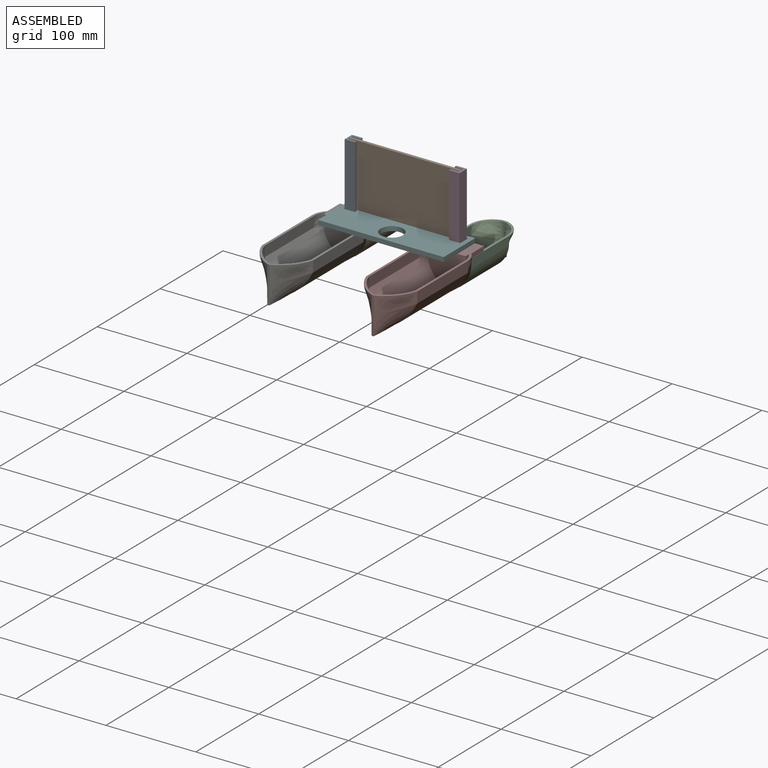
[diagram: assembled view]
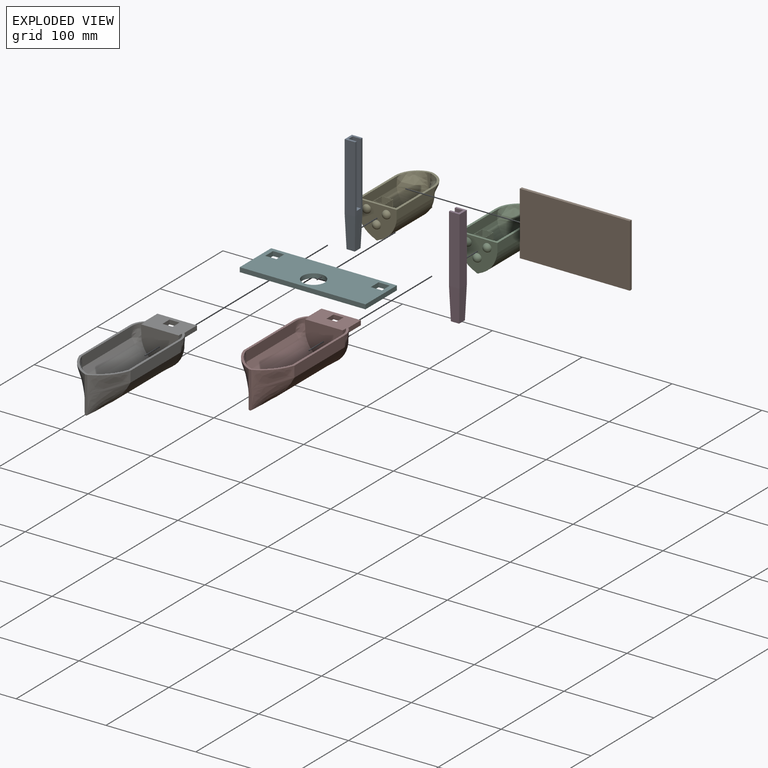
[diagram: exploded view]
GUIDED TOUR — MATED ASSEMBLY (Onshape document 58406fd04f1afb109c46c443, AutoMate assembly 58406fd04f1afb109c46c443_170018a6fda4be6148082988_6fb4af5002165b8be4d22255_default)

This assembly has 8 components, labeled P0..P7 below (a component is one placed occurrence of a part; the same part can appear more than once), held together by 7 mates. A mate is a constraint between two components; its type names the relative motion it leaves free:
  FASTENED — locks the two components together rigidly (no relative motion).
Axis/direction vectors are unit vectors and 'through' points are millimeter coordinates, both in the assembly's world frame.

MATES
  1. FASTENED "Fastened 6": P3 <-> P2, direction (0.000, 0.000, -1.000) through (53.33, 26.30, -78.18) mm
  2. FASTENED "Fastened 3": P2 <-> P7, direction (0.000, -1.000, 0.000) through (53.33, 16.05, -63.20) mm
  3. FASTENED "Fastened 4": P5 <-> P7, direction (0.000, -1.000, 0.000) through (47.74, 26.30, -42.39) mm
  4. FASTENED "Fastened 2": P5 <-> P6, direction (0.000, 0.000, -1.000) through (-57.26, 26.30, -42.39) mm
  5. FASTENED "Fastened 5": P0 <-> P4, direction (0.000, 0.000, -1.000) through (-62.84, 26.30, -78.18) mm
  6. FASTENED "Fastened 1": P4 <-> P6, direction (0.000, -1.000, 0.000) through (-62.84, 16.05, -63.20) mm
  7. FASTENED "Fastened 7": P1 <-> P0, direction (-1.000, 0.000, 0.000) through (-66.19, 26.30, -2.39) mm

ASSEMBLY ORDER
  1. P0 — the base component [order heuristic]
  2. P4 — core [order heuristic]
  3. P5 [order verified]
  4. P7 — core [order heuristic]
  5. P2 — core [order heuristic]
  6. P3 — core [order heuristic]
  7. P1 [order verified]
  8. P6 — core [order heuristic]
Order-tag legend:
  [order verified] — this step's position reverses a verified removal order: the component was checked to insert without passing through the ones already placed.
  [order heuristic] — the first 6 components form the assembly's core: parts whose collision-free extraction could not be verified, listed in mate-graph order.

Of the 8 components, 2 carry the full construction recipe — the FeatureScript program that regenerates the part's solid from scratch; the rest are supplied as boundary geometry only.
Each toured component is shown spotlighted twice — in the assembled view, then in the exploded view, where a leader line traces a displaced component back to its assembled socket (saturated green if recipe-attached, orange if geometry-only; every other component desaturated gray) — followed by its recipe or geometry summary and the mates that hold it.
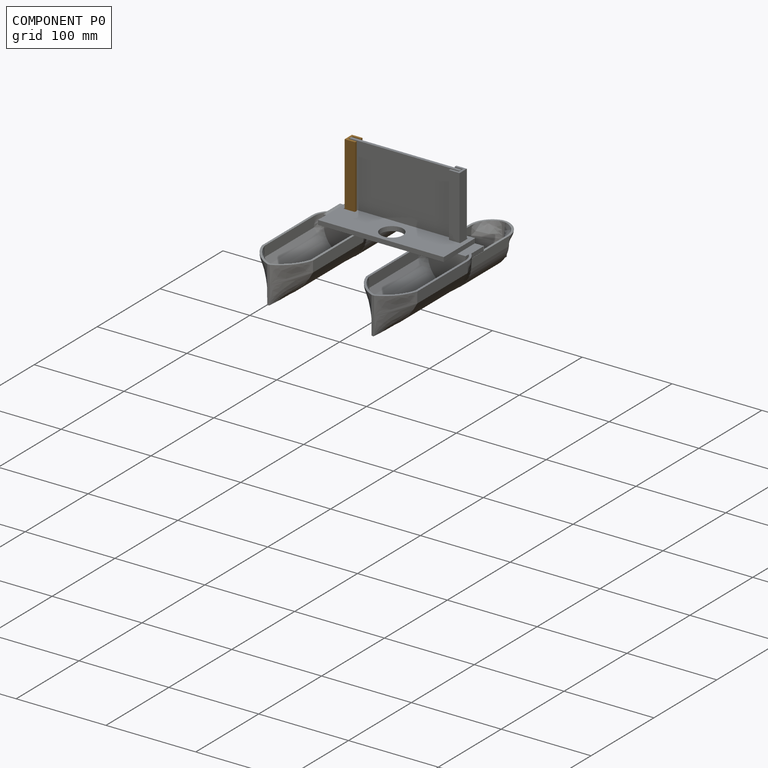
[diagram: component P0 — assembled]
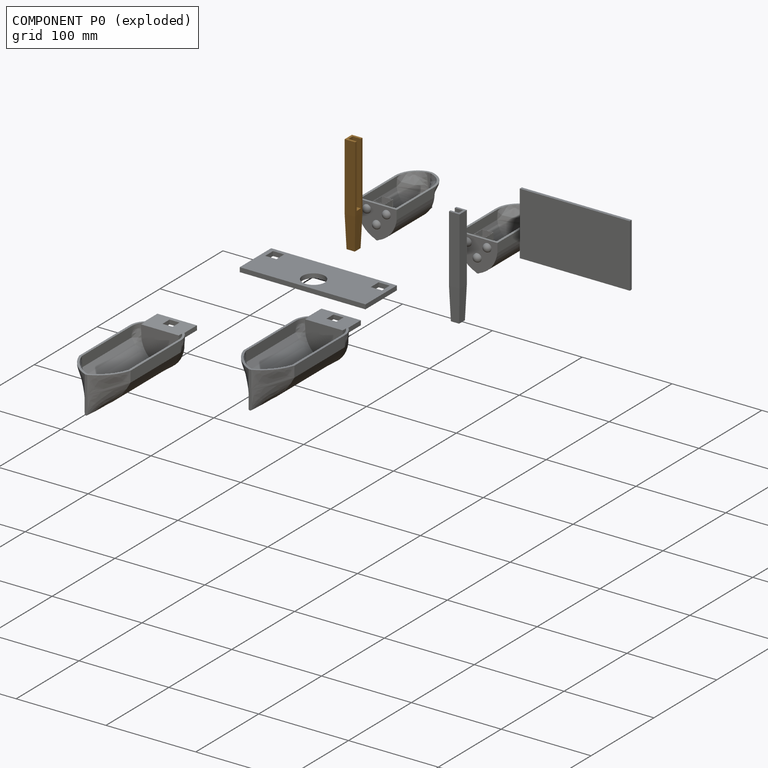
[diagram: component P0 — exploded]
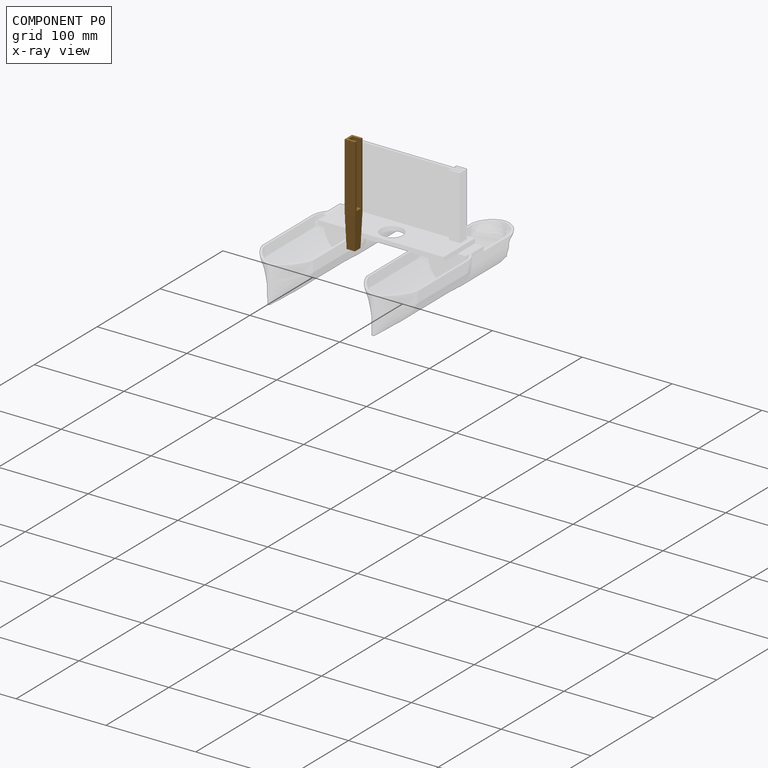
[diagram: component P0 — x-ray view]
COMPONENT P0 — geometry summary (no construction recipe available for this part):
  bounding box: 110.8 x 11.7 x 11.7 mm
  B-rep topology: 1 solid, 14 faces, 64 edges
  volume: 9879 mm^3 (65% of its bounding box)
  symmetry: mirror-symmetric across its y mid-plane
Held by: FASTENED mate "Fastened 5" to P4; FASTENED mate "Fastened 7" to P1.
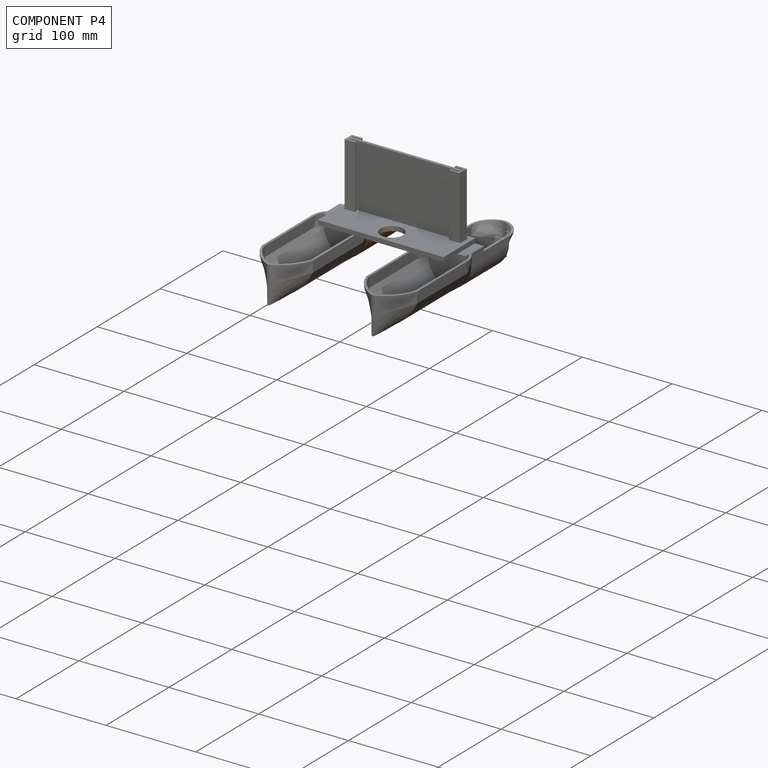
[diagram: component P4 — assembled]
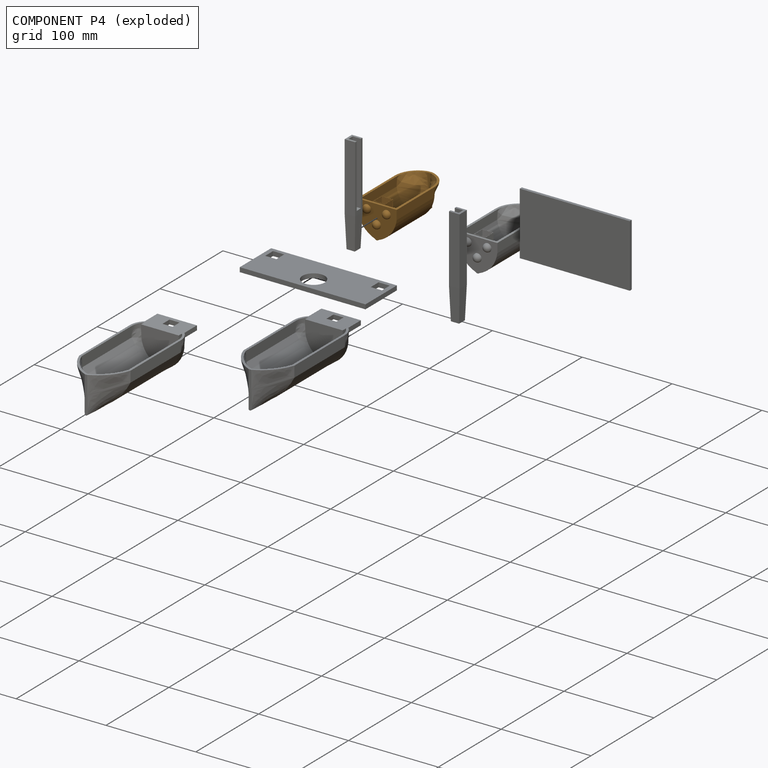
[diagram: component P4 — exploded]
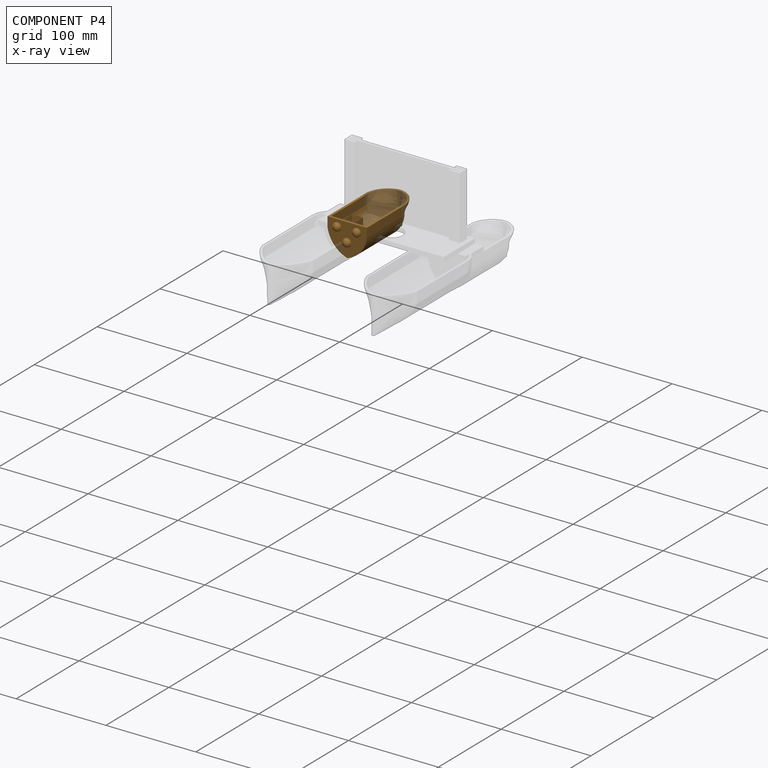
[diagram: component P4 — x-ray view]
COMPONENT P4 — geometry summary (no construction recipe available for this part):
  bounding box: 94.5 x 49.4 x 41.5 mm
  B-rep topology: 1 solid, 41 faces, 212 edges
  volume: 23993 mm^3 (12% of its bounding box)
  symmetry: mirror-symmetric across its x mid-plane
Held by: FASTENED mate "Fastened 5" to P0; FASTENED mate "Fastened 1" to P6.
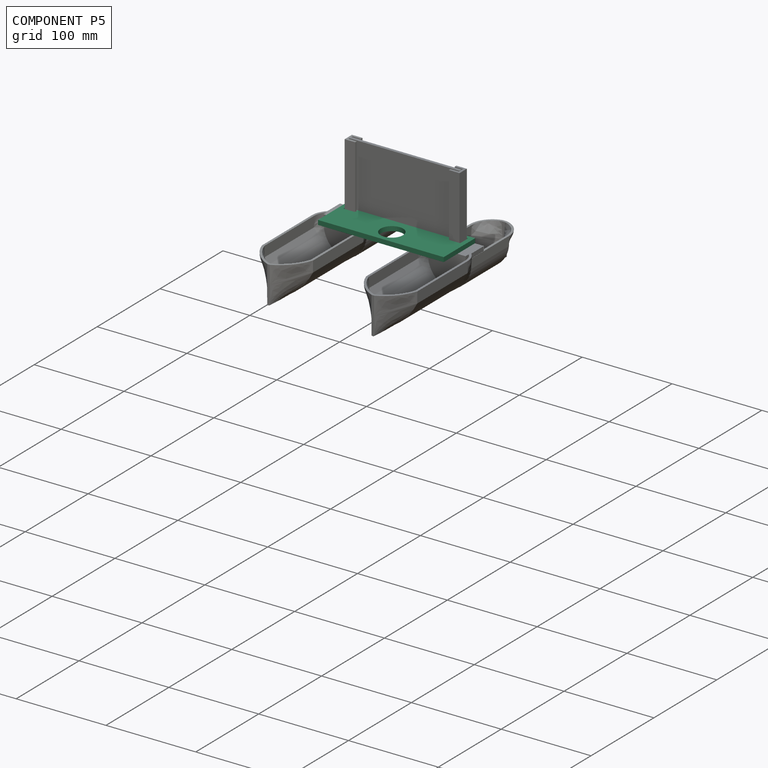
[diagram: component P5 — assembled]
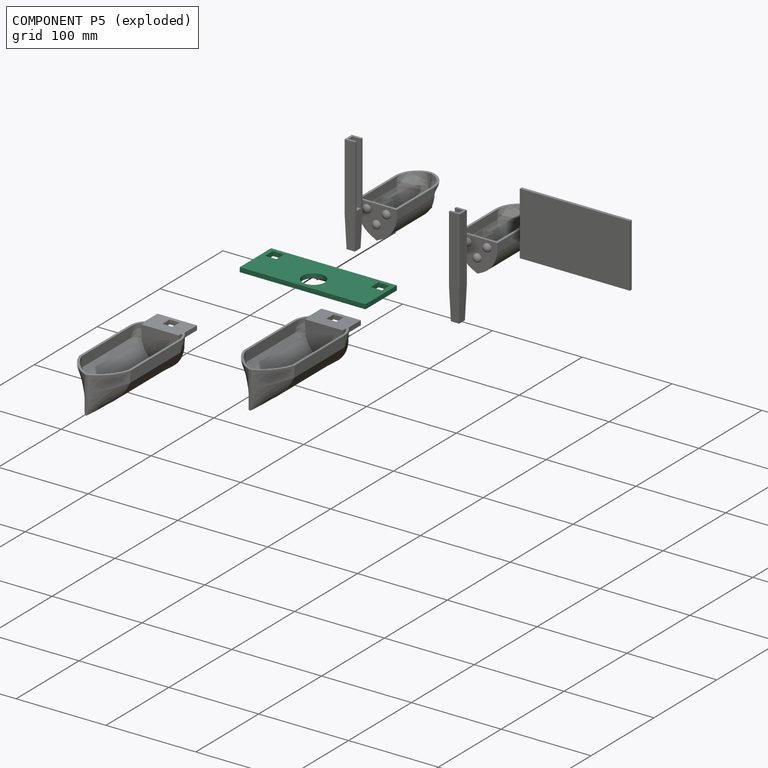
[diagram: component P5 — exploded]
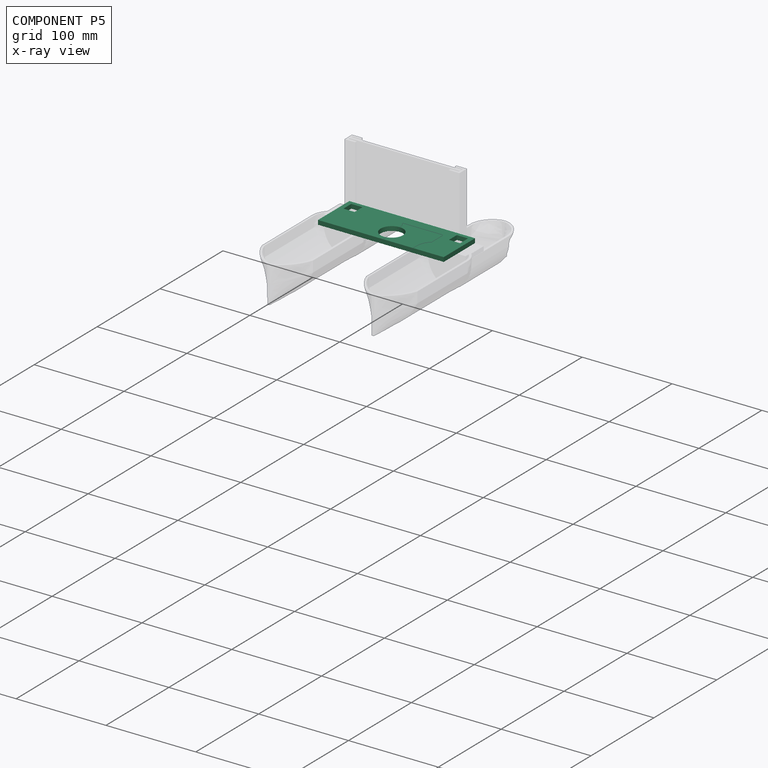
[diagram: component P5 — x-ray view]
COMPONENT P5 — recipe-attached (CADFS 00359932, mesh-verified: the recipe's output STEP matches this component's geometry to below the mesh-comparison resolution (tessellation chordal tolerance ~0.223 mm)).
Held by: FASTENED mate "Fastened 4" to P7; FASTENED mate "Fastened 2" to P6.
Construction recipe (FeatureScript — the CAD program that rebuilds this solid; sketch coordinates are in the units given by the * unit suffixes, e.g. mm):

FeatureScript 1511;
import(path : "onshape/std/geometry.fs", version : "1511.0");
import(path : "onshape/std/common.fs", version : "1511.0");
const mm = millimeter;
const VERTEX = EntityType.VERTEX;
const EDGE = EntityType.EDGE;
const FACE = EntityType.FACE;
const BODY = EntityType.BODY;
function v(x, y){return vector(x, y);}
function OD(order){return orderDisambiguation(order);}
function OSD(set){return originalSetDisambiguation(set);}
function TD(topology){return topologyDisambiguation(topology);}
function TDD(query){return trueDependencyDisambiguation(query);}
function sQuery(a, b, c) {return sketchEntityQuery(a, b, c);}

annotation { "Feature Type Name" : "Feature", "Feature Type Description" : "" }
export const myFeature = defineFeature(function(context is Context, id is Id, definition is map)
    precondition{}
    {
        {
            var Q0;
            Q0=qCreatedBy(makeId("Top.planeOp"),FACE);
            var sketch = newSketch(context, id + "F0", { "sketchPlane" : qUnion([Q0])});
            skLineSegment(sketch, "E0.bottom", {"start": v(-67.77, 20.9) * mm, "end": v(72.23, 20.9) * mm});
            skLineSegment(sketch, "E0.top", {"start": v(-67.77, -29.1) * mm, "end": v(72.23, -29.1) * mm});
            skLineSegment(sketch, "E0.left", {"start": v(-67.77, 20.9) * mm, "end": v(-67.77, -29.1) * mm});
            skLineSegment(sketch, "E0.right", {"start": v(72.23, 20.9) * mm, "end": v(72.23, -29.1) * mm});
            skSolve(sketch);
        }
        {
            var Q0;
            Q0=makeQuery(id+"F0.imprint","IMPRINT",FACE,{"disambiguationData":[TD([[makeQuery(id+"F0.imprint","IMPRINT",EDGE,{"derivedFrom":sQuery(id+"F0.wireOp",EDGE,"E0.bottom")}),-1.0]])]});
            extrude(context, id + "F1", {"entities" : qUnion([Q0]), "depth" : 5 * mm});
        }
        {
            var Q0;
            Q0=makeQuery(id+"F1.opExtrude","CAP_FACE",FACE,{"disambiguationData":[OSD([sQuery(id+"F0.wireOp",EDGE,"E0.bottom"),sQuery(id+"F0.wireOp",EDGE,"E0.top"),sQuery(id+"F0.wireOp",EDGE,"E0.left"),sQuery(id+"F0.wireOp",EDGE,"E0.right")])],"isStart":false});
            var sketch = newSketch(context, id + "F2", { "sketchPlane" : qUnion([Q0])});
            skLineSegment(sketch, "E1.bottom", {"start": v(-62.77, 16.75) * mm, "end": v(-50.27, 16.75) * mm});
            skLineSegment(sketch, "E1.top", {"start": v(-62.77, 4.25) * mm, "end": v(-50.27, 4.25) * mm});
            skLineSegment(sketch, "E1.left", {"start": v(-62.77, 16.75) * mm, "end": v(-62.77, 4.25) * mm});
            skLineSegment(sketch, "E1.right", {"start": v(-50.27, 16.75) * mm, "end": v(-50.27, 4.25) * mm});
            skLineSegment(sketch, "E2", {"start": v(2.23, -29.1) * mm, "end": v(2.23, 20.9) * mm, "construction": true});
            skLineSegment(sketch, "E3.MirrorCS", {"start": v(54.73, 16.75) * mm, "end": v(54.73, 4.25) * mm});
            skLineSegment(sketch, "E4.MirrorCS", {"start": v(67.23, 16.75) * mm, "end": v(67.23, 4.25) * mm});
            skLineSegment(sketch, "E5.MirrorCS", {"start": v(67.23, 4.25) * mm, "end": v(54.73, 4.25) * mm});
            skLineSegment(sketch, "E6.MirrorCS", {"start": v(67.23, 16.75) * mm, "end": v(54.73, 16.75) * mm});
            skSolve(sketch);
        }
        {
            var Q0;
            Q0=makeQuery(id+"F2.imprint","IMPRINT",FACE,{"disambiguationData":[TD([[makeQuery(id+"F2.imprint","IMPRINT",EDGE,{"derivedFrom":sQuery(id+"F2.wireOp",EDGE,"E1.bottom")}),-1.0]])]});
            var Q1;
            Q1=makeQuery(id+"F2.imprint","IMPRINT",FACE,{"disambiguationData":[TD([[makeQuery(id+"F2.imprint","IMPRINT",EDGE,{"derivedFrom":sQuery(id+"F2.wireOp",EDGE,"E3.MirrorCS")}),1.0]])]});
            extrude(context, id + "F3", {"entities" : qUnion([Q0, Q1]), "operationType" : NewBodyOperationType.REMOVE, "oppositeDirection" : true, "depth" : 25 * mm});
        }
        {
            var Q0;
            Q0=makeQuery(id+"F1.opExtrude","CAP_FACE",FACE,{"disambiguationData":[OSD([sQuery(id+"F0.wireOp",EDGE,"E0.bottom"),sQuery(id+"F0.wireOp",EDGE,"E0.top"),sQuery(id+"F0.wireOp",EDGE,"E0.left"),sQuery(id+"F0.wireOp",EDGE,"E0.right")])],"isStart":false});
            var sketch = newSketch(context, id + "F4", { "sketchPlane" : qUnion([Q0])});
            skLineSegment(sketch, "E7", {"start": v(2.23, 20.9) * mm, "end": v(2.23, -29.1) * mm, "construction": true});
            skCircle(sketch, "E8", {"center": v(2.23, -11.6) * mm, "radius": 12.5 * mm});
            skSolve(sketch);
        }
        {
            var Q0;
            Q0=makeQuery(id+"F4.imprint","IMPRINT",FACE,{"disambiguationData":[TD([[makeQuery(id+"F4.imprint","IMPRINT",EDGE,{"derivedFrom":sQuery(id+"F4.wireOp",EDGE,"E8")}),1.0]])]});
            extrude(context, id + "F5", {"entities" : qUnion([Q0]), "operationType" : NewBodyOperationType.REMOVE, "oppositeDirection" : true, "depth" : 25 * mm});
        }
    });
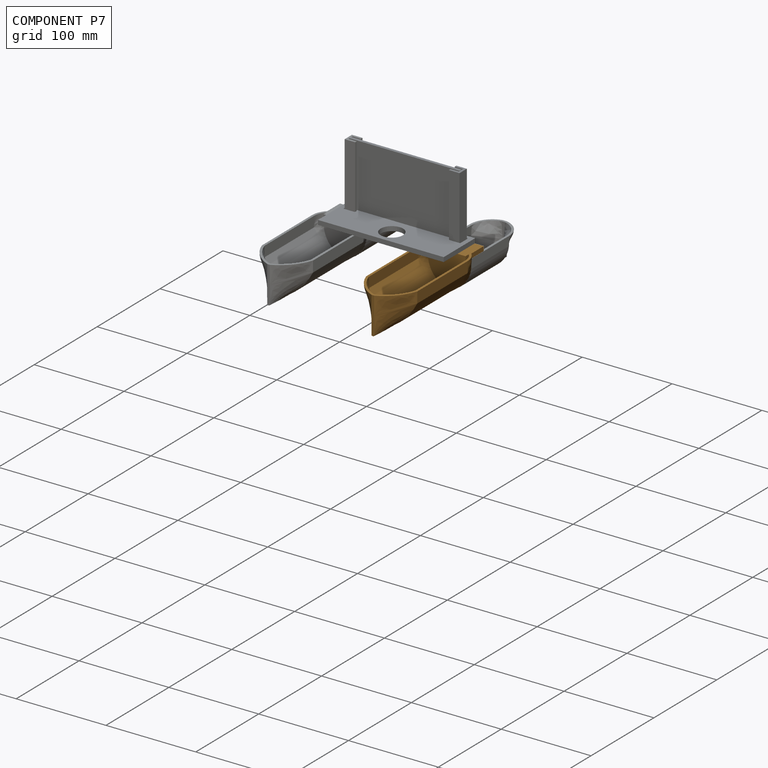
[diagram: component P7 — assembled]
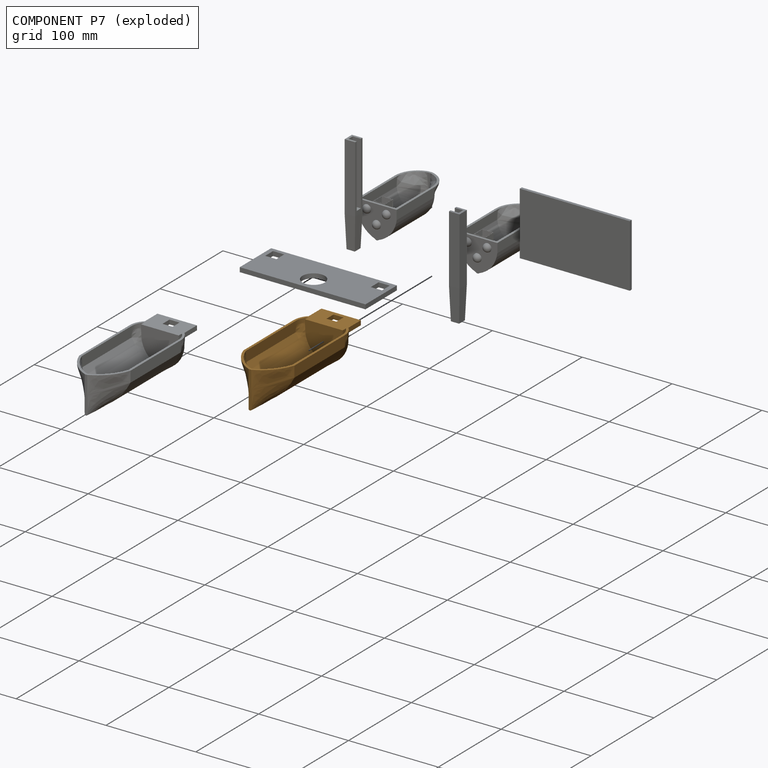
[diagram: component P7 — exploded]
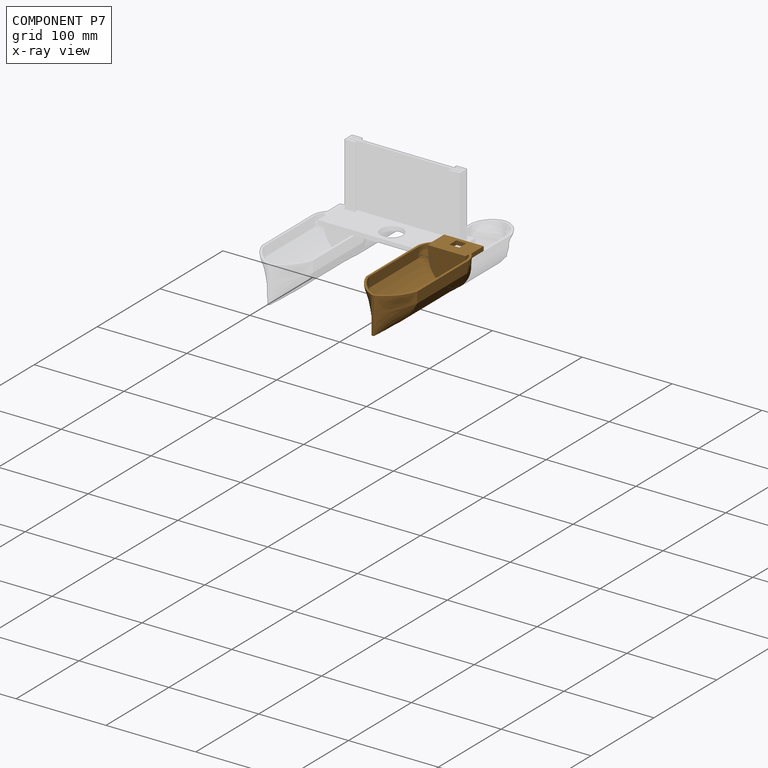
[diagram: component P7 — x-ray view]
COMPONENT P7 — geometry summary (no construction recipe available for this part):
  bounding box: 150.0 x 62.3 x 46.5 mm
  B-rep topology: 1 solid, 58 faces, 312 edges
  volume: 45427 mm^3 (10% of its bounding box)
  symmetry: mirror-symmetric across its x mid-plane
Held by: FASTENED mate "Fastened 3" to P2; FASTENED mate "Fastened 4" to P5.
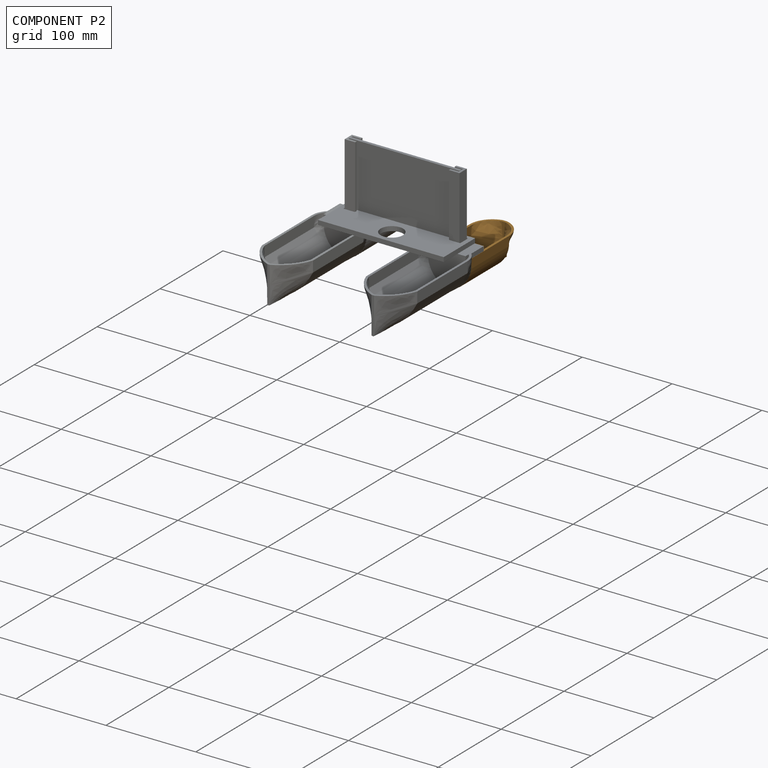
[diagram: component P2 — assembled]
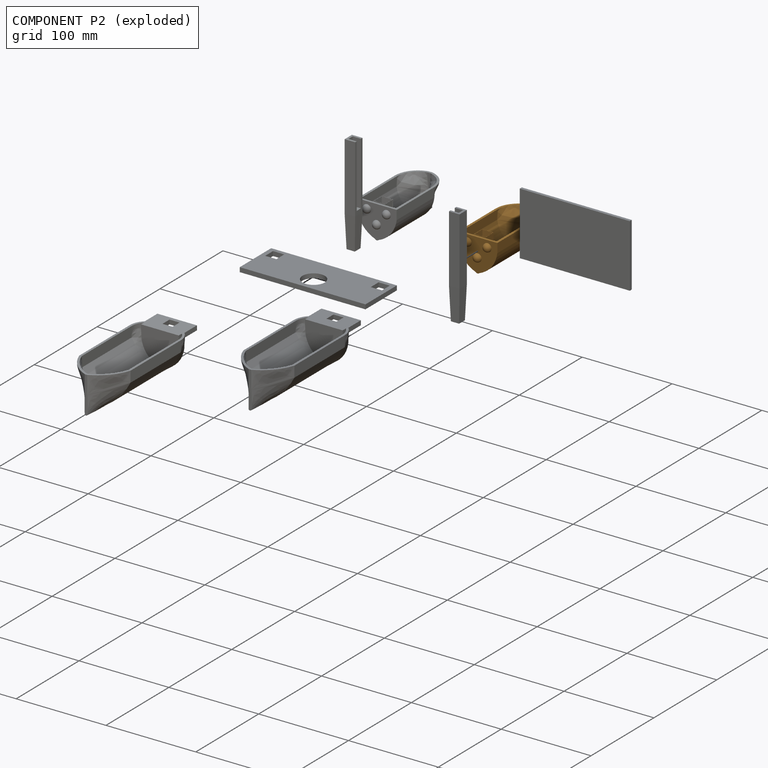
[diagram: component P2 — exploded]
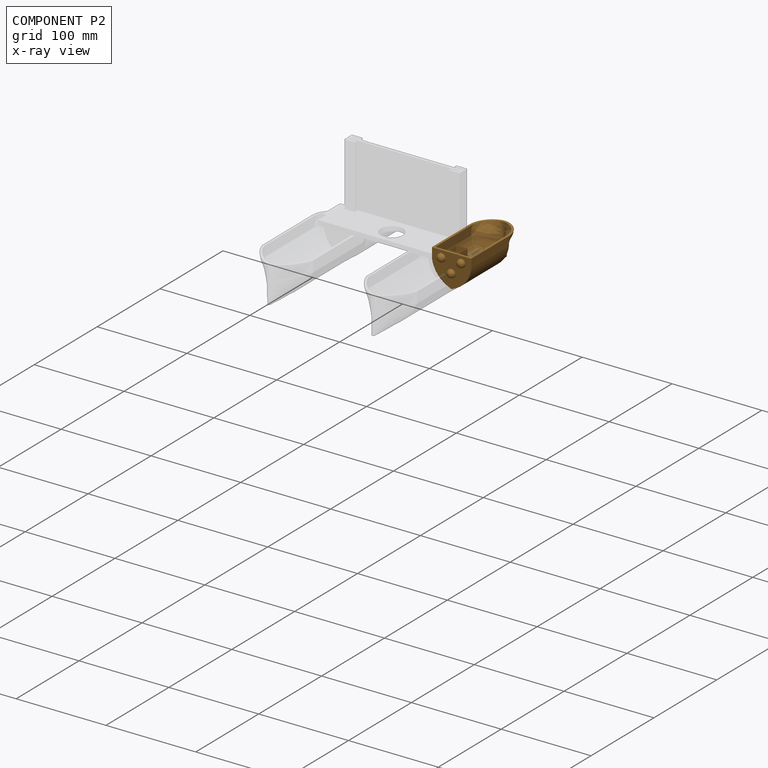
[diagram: component P2 — x-ray view]
COMPONENT P2 — geometry summary (no construction recipe available for this part):
  bounding box: 94.5 x 49.4 x 41.5 mm
  B-rep topology: 1 solid, 41 faces, 212 edges
  volume: 23993 mm^3 (12% of its bounding box)
  symmetry: mirror-symmetric across its x mid-plane
Held by: FASTENED mate "Fastened 6" to P3; FASTENED mate "Fastened 3" to P7.
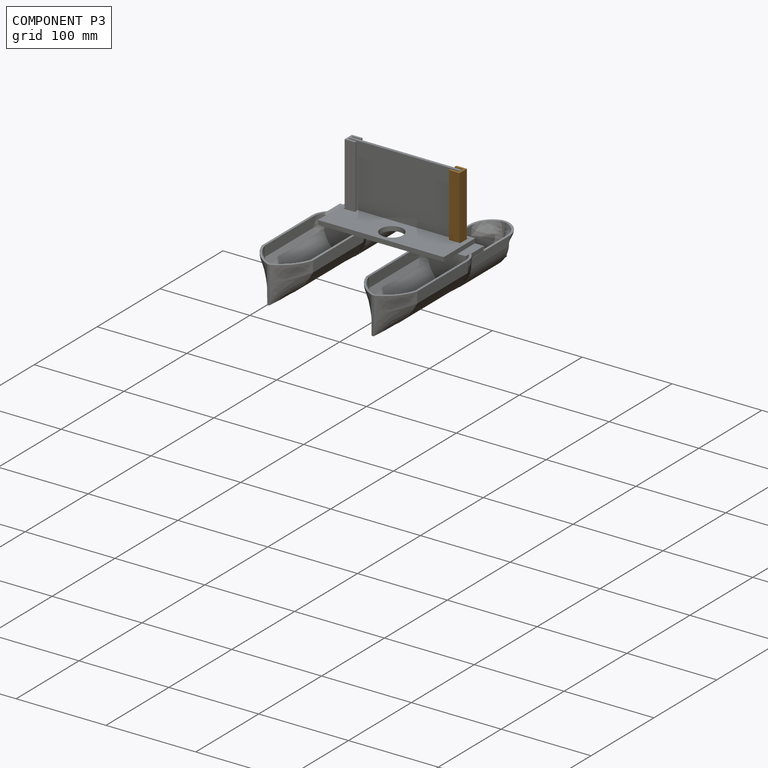
[diagram: component P3 — assembled]
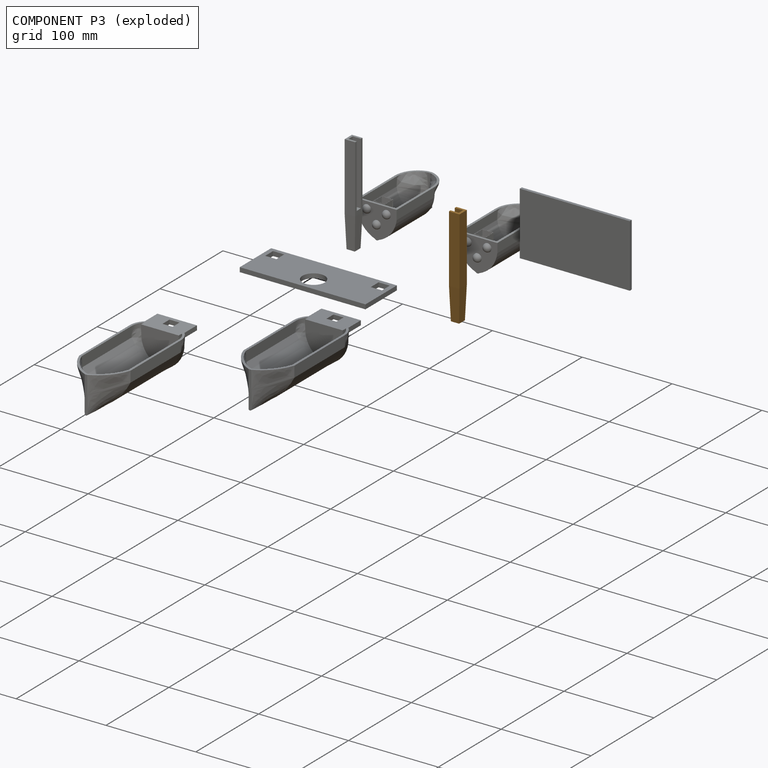
[diagram: component P3 — exploded]
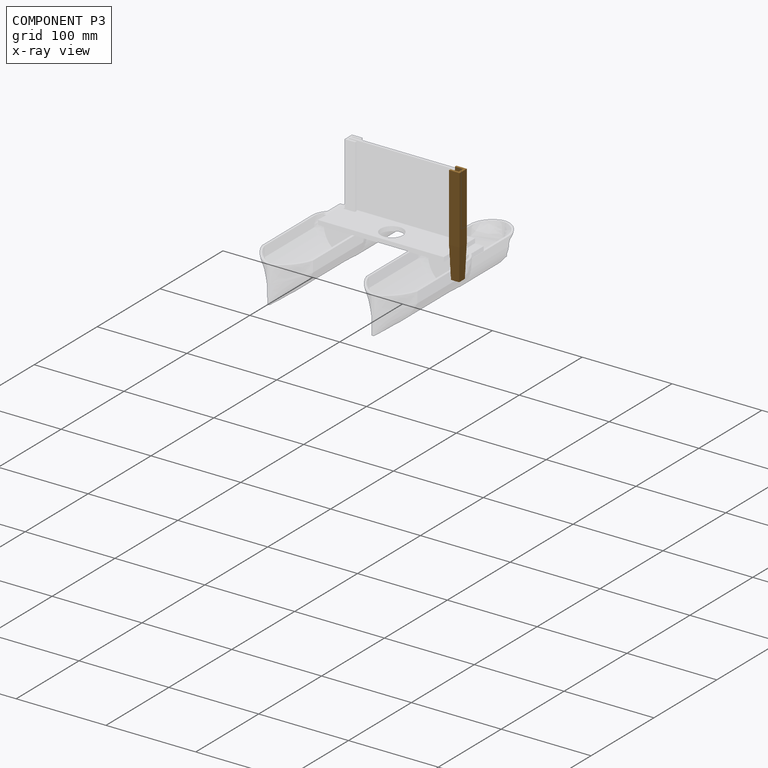
[diagram: component P3 — x-ray view]
COMPONENT P3 — geometry summary (no construction recipe available for this part):
  bounding box: 110.8 x 11.7 x 11.7 mm
  B-rep topology: 1 solid, 14 faces, 64 edges
  volume: 9879 mm^3 (65% of its bounding box)
  symmetry: mirror-symmetric across its y mid-plane
Held by: FASTENED mate "Fastened 6" to P2.
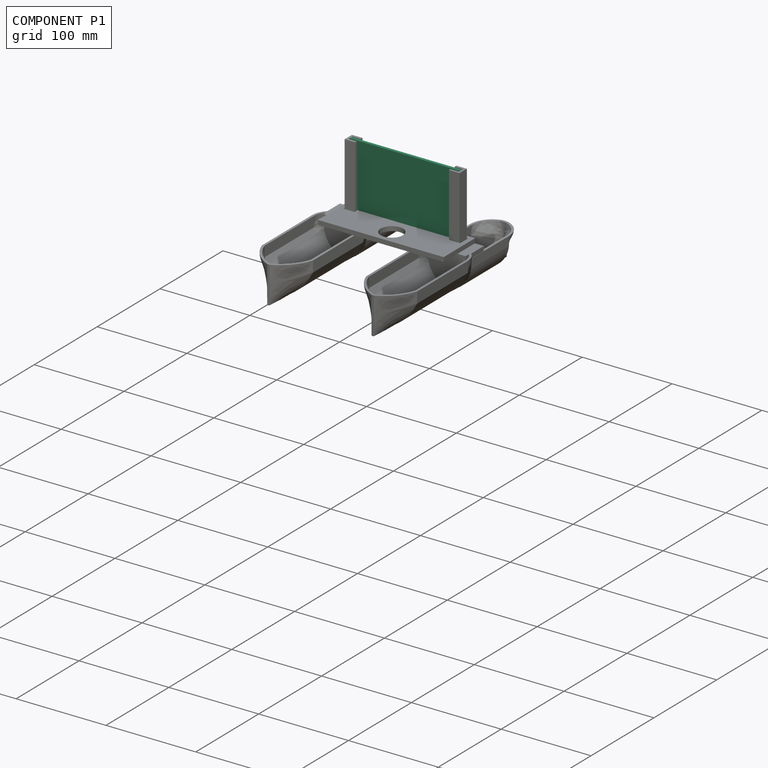
[diagram: component P1 — assembled]
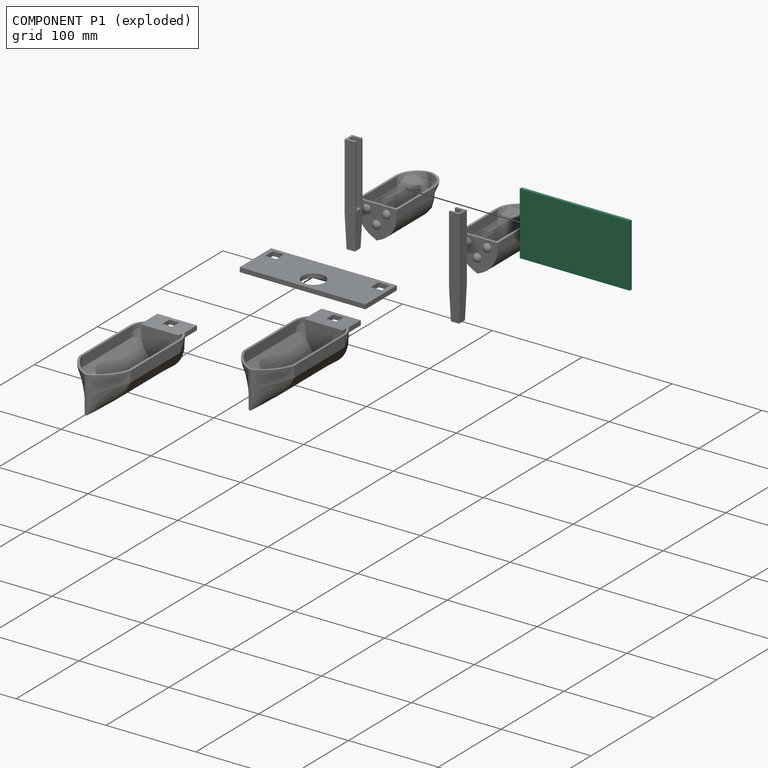
[diagram: component P1 — exploded]
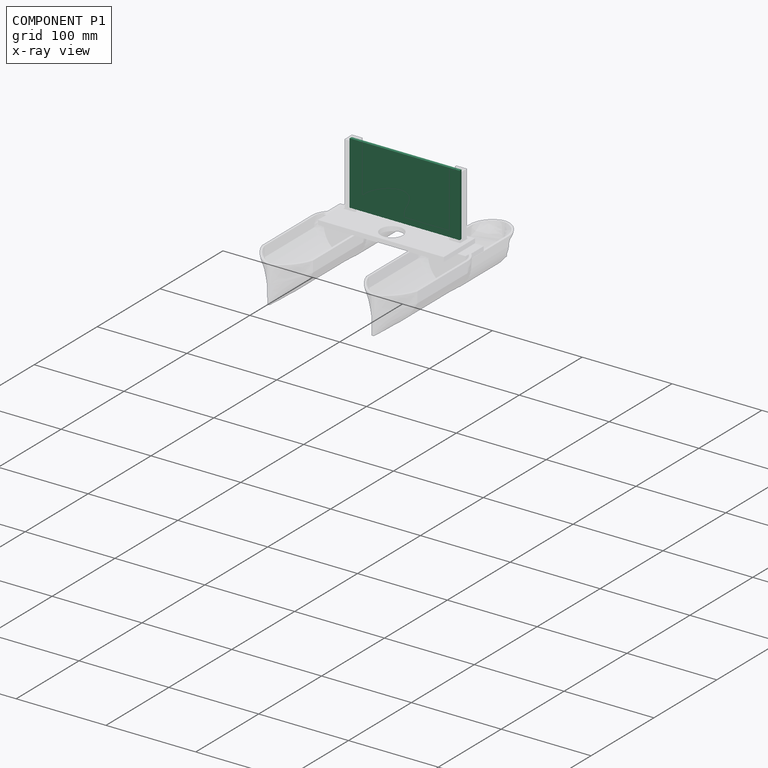
[diagram: component P1 — x-ray view]
COMPONENT P1 — recipe-attached (CADFS 00359933, mesh-verified: the recipe's output STEP matches this component's geometry to below the mesh-comparison resolution (tessellation chordal tolerance ~0.212 mm)).
Held by: FASTENED mate "Fastened 7" to P0.
Construction recipe (FeatureScript — the CAD program that rebuilds this solid; sketch coordinates are in the units given by the * unit suffixes, e.g. mm):

FeatureScript 1511;
import(path : "onshape/std/geometry.fs", version : "1511.0");
import(path : "onshape/std/common.fs", version : "1511.0");
const mm = millimeter;
const VERTEX = EntityType.VERTEX;
const EDGE = EntityType.EDGE;
const FACE = EntityType.FACE;
const BODY = EntityType.BODY;
function v(x, y){return vector(x, y);}
function OD(order){return orderDisambiguation(order);}
function OSD(set){return originalSetDisambiguation(set);}
function TD(topology){return topologyDisambiguation(topology);}
function TDD(query){return trueDependencyDisambiguation(query);}
function sQuery(a, b, c) {return sketchEntityQuery(a, b, c);}

annotation { "Feature Type Name" : "Feature", "Feature Type Description" : "" }
export const myFeature = defineFeature(function(context is Context, id is Id, definition is map)
    precondition{}
    {
        {
            var Q0;
            Q0=qCreatedBy(makeId("Top.planeOp"),FACE);
            var sketch = newSketch(context, id + "F0", { "sketchPlane" : qUnion([Q0])});
            skLineSegment(sketch, "E0.bottom", {"start": v(-14.69, 2.6) * mm, "end": v(107.81, 2.6) * mm});
            skLineSegment(sketch, "E0.top", {"start": v(-14.69, -0.6) * mm, "end": v(107.81, -0.6) * mm});
            skLineSegment(sketch, "E0.left", {"start": v(-14.69, 2.6) * mm, "end": v(-14.69, -0.6) * mm});
            skLineSegment(sketch, "E0.right", {"start": v(107.81, 2.6) * mm, "end": v(107.81, -0.6) * mm});
            skSolve(sketch);
        }
        {
            var Q0;
            Q0=makeQuery(id+"F0.imprint","IMPRINT",FACE,{"disambiguationData":[TD([[makeQuery(id+"F0.imprint","IMPRINT",EDGE,{"derivedFrom":sQuery(id+"F0.wireOp",EDGE,"E0.bottom")}),-1.0]])]});
            extrude(context, id + "F1", {"entities" : qUnion([Q0]), "depth" : 70 * mm});
        }
    });
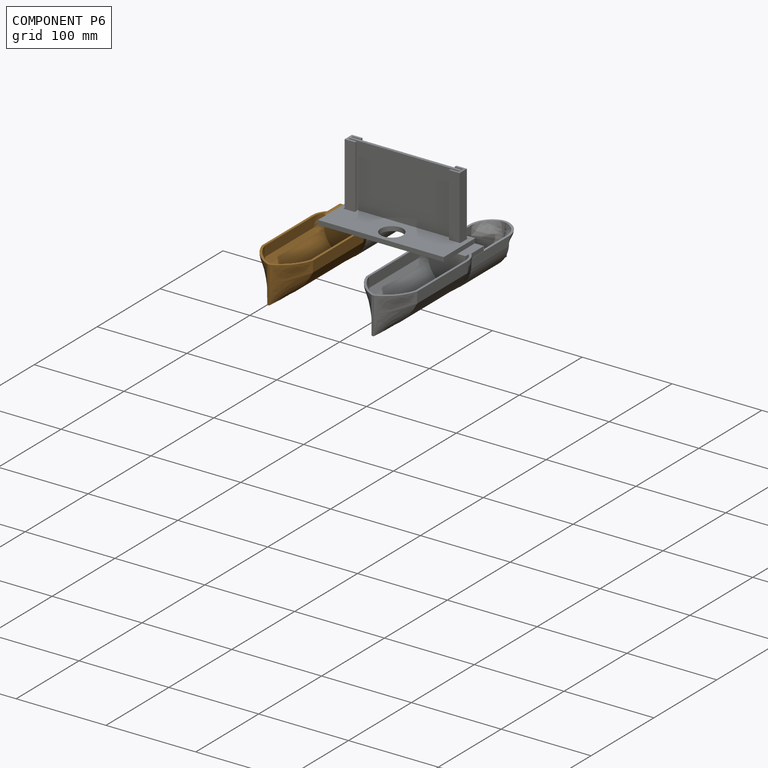
[diagram: component P6 — assembled]
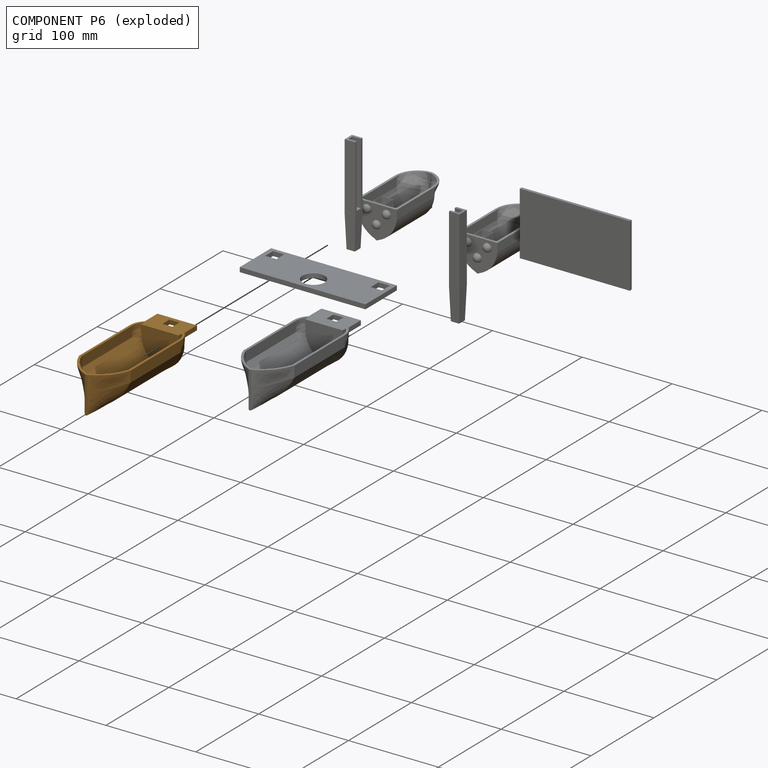
[diagram: component P6 — exploded]
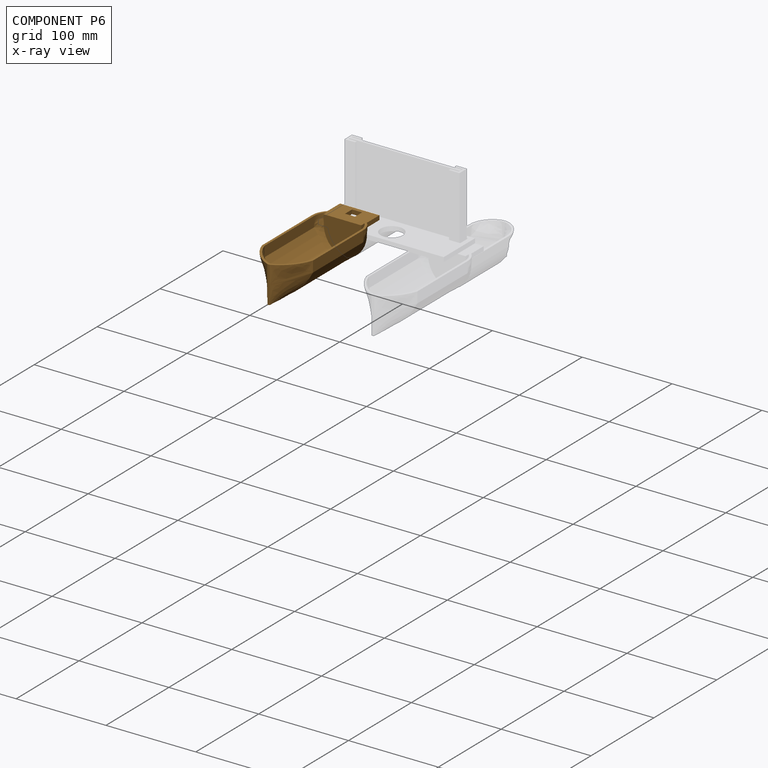
[diagram: component P6 — x-ray view]
COMPONENT P6 — geometry summary (no construction recipe available for this part):
  bounding box: 150.0 x 62.3 x 46.5 mm
  B-rep topology: 1 solid, 58 faces, 312 edges
  volume: 45427 mm^3 (10% of its bounding box)
  symmetry: mirror-symmetric across its x mid-plane
Held by: FASTENED mate "Fastened 2" to P5; FASTENED mate "Fastened 1" to P4.
PROVENANCE & LICENSES
Assembly (occurrences, transforms, mates, per-part STEP geometry): AutoMate dataset, Zenodo record 7776208, CC0.
Construction recipes: CADFS (HuggingFace VladPyatov/CADFS, CC-BY-4.0, layered over the ABC dataset), FeatureScript reconstruction programs keyed by ABC model id.
Join: ABC meta listings map ABC model id -> Onshape documentId; within a shared document, parts are matched by geometric signature (bounding-box dims + volume at 0.1% relative tolerance, exact B-rep face/solid counts).
Verification: 2 of this assembly's 8 components carry a recipe attachment, and every attachment is mesh-verified: the CADFS STEP and the AutoMate member STEP were compared as meshes in their shared local frame (symmetric sampled-point-to-mesh distance); worst across the 2 attachments: below the mesh-comparison resolution (tessellation chordal tolerance ~0.223 mm) on a 149 mm part.
Renders: orthographic iso camera (az 35 / el 25); the floor grid conveys scale (grid pitch printed in each image; no ruler). In the exploded view each component is displaced by its stored offset vector: the offsets alone carry the explosion direction (mate normal/axis signs are not orientation cues and do not encode it), and separation distances are assigned per mate-chain, not proportionally to assembly-order depth.
